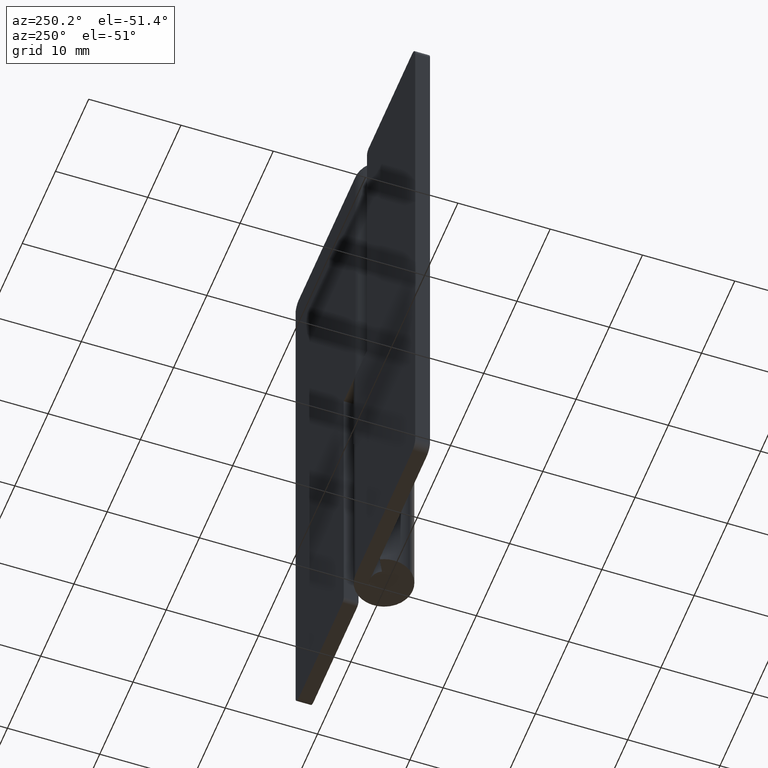
[diagram: clean part render]
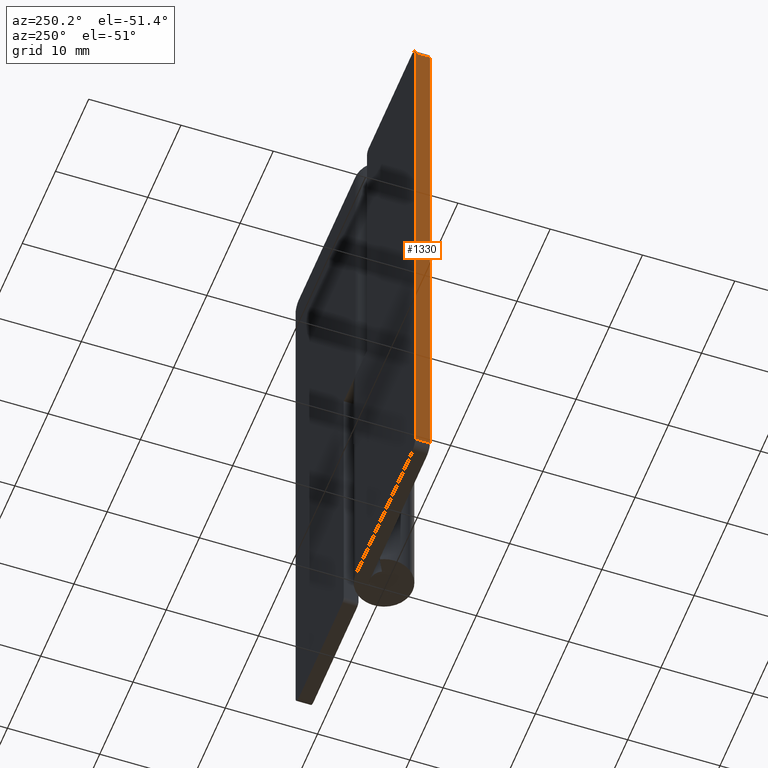
[diagram: same view with one face highlighted and labeled with its STEP entity id]
A machine part, auxiliary view. The second image highlights one B-rep face of the part: STEP entity #1330.
In plain terms, the highlighted face is a freeform B-spline surface patch.
Its self-contained STEP definition (entity closure, byte-faithful):
#882=CARTESIAN_POINT('',(-18.0,1.500000000000055,64.0));
#883=VERTEX_POINT('',#882);
#904=CARTESIAN_POINT('',(-18.0,3.099998000000050,64.0));
#905=VERTEX_POINT('',#904);
#919=CARTESIAN_POINT('',(-18.0,3.099998000000050,64.0));
#920=CARTESIAN_POINT('',(-18.0,1.500000000000055,64.0));
#921=QUASI_UNIFORM_CURVE('',1,(#919,#920),.UNSPECIFIED.,.F.,.U.);
#922=EDGE_CURVE('',#905,#883,#921,.T.);
#941=CARTESIAN_POINT('',(-18.0,1.500000000000055,1.0));
#942=VERTEX_POINT('',#941);
#958=CARTESIAN_POINT('',(-18.0,3.099998000000050,1.0));
#959=VERTEX_POINT('',#958);
#960=CARTESIAN_POINT('',(-18.0,3.099998000000050,1.0));
#961=CARTESIAN_POINT('',(-18.0,1.500000000000055,1.0));
#962=QUASI_UNIFORM_CURVE('',1,(#960,#961),.UNSPECIFIED.,.F.,.U.);
#963=EDGE_CURVE('',#959,#942,#962,.T.);
#1311=CARTESIAN_POINT('',(-18.0,1.420080103001162,-2.146849877893774));
#1312=CARTESIAN_POINT('',(-18.0,1.420080103001162,67.146851567685459));
#1313=CARTESIAN_POINT('',(-18.0,3.179917939914234,-2.146849877893774));
#1314=CARTESIAN_POINT('',(-18.0,3.179917939914234,67.146851567685459));
#1315=B_SPLINE_SURFACE_WITH_KNOTS('',1,1,((#1311,#1313),(#1312,#1314)),.UNSPECIFIED.,.F.,.F.,.U.,(2,2),(2,2),(0.0,69.293701445579231),(0.041708334948495,0.958291687403247),.UNSPECIFIED.);
#1316=ORIENTED_EDGE('',*,*,#922,.F.);
#1317=CARTESIAN_POINT('',(-18.0,3.099998000000050,1.0));
#1318=CARTESIAN_POINT('',(-18.0,3.099998000000050,64.0));
#1319=QUASI_UNIFORM_CURVE('',1,(#1317,#1318),.UNSPECIFIED.,.F.,.U.);
#1320=EDGE_CURVE('',#959,#905,#1319,.T.);
#1321=ORIENTED_EDGE('',*,*,#1320,.F.);
#1322=ORIENTED_EDGE('',*,*,#963,.T.);
#1323=CARTESIAN_POINT('',(-18.0,1.500000000000055,1.0));
#1324=CARTESIAN_POINT('',(-18.0,1.500000000000055,64.0));
#1325=QUASI_UNIFORM_CURVE('',1,(#1323,#1324),.UNSPECIFIED.,.F.,.U.);
#1326=EDGE_CURVE('',#942,#883,#1325,.T.);
#1327=ORIENTED_EDGE('',*,*,#1326,.T.);
#1328=EDGE_LOOP('',(#1316,#1321,#1322,#1327));
#1329=FACE_OUTER_BOUND('',#1328,.T.);
#1330=ADVANCED_FACE('',(#1329),#1315,.T.);